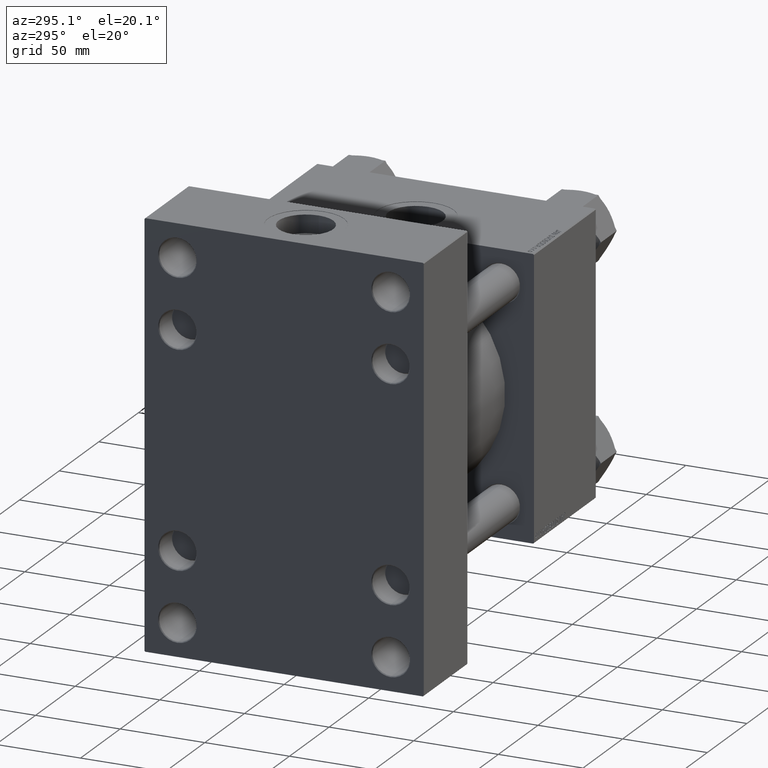
[diagram: clean part render]
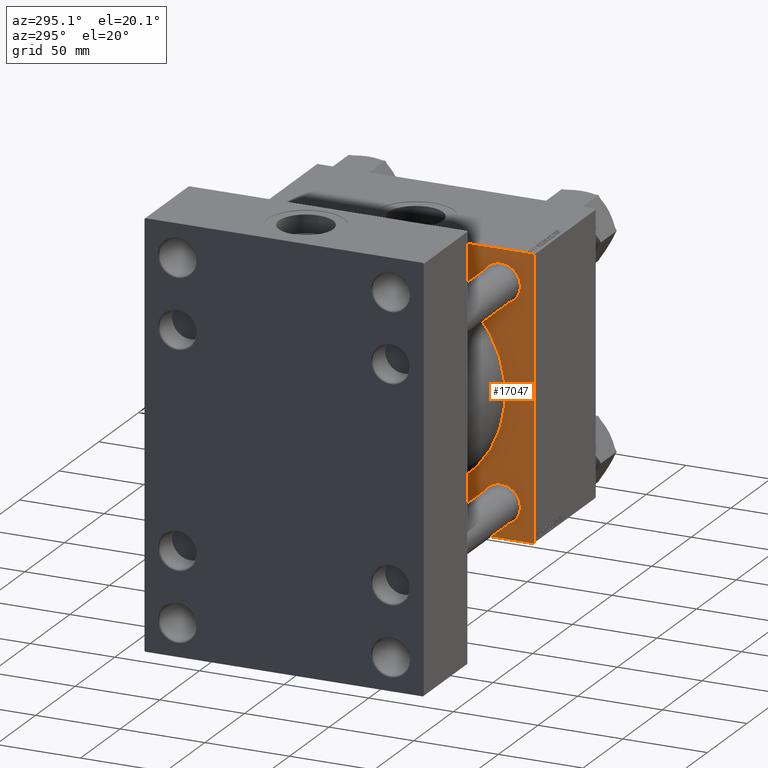
[diagram: same view with one face highlighted and labeled with its STEP entity id]
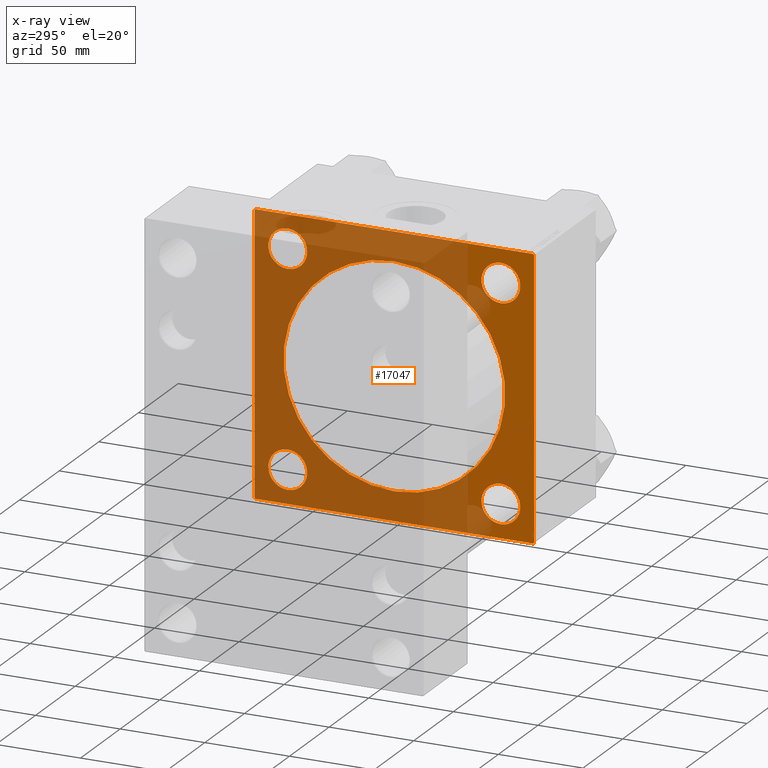
[diagram: x-ray of the same camera — body ghosted, the highlighted face saturated]
A machine part, auxiliary view. The second image highlights one B-rep face of the part: STEP entity #17047.
The next image is the same camera in x-ray: the body ghosted, the highlighted face saturated — about 69% of this face is hidden behind the body in this view.
In plain terms, the highlighted planar face has unit normal (-1, 0, 0).
Its self-contained STEP definition (entity closure, byte-faithful):
#990 = DIRECTION ( 'NONE',  ( 0.000000000000000000, 0.000000000000000000, 1.000000000000000000 ) ) ;
#1236 = DIRECTION ( 'NONE',  ( 1.000000000000000000, 0.000000000000000000, -0.000000000000000000 ) ) ;
#1289 = CARTESIAN_POINT ( 'NONE',  ( 139.0000000000000000, 81.99999999999995737, 82.50000000000000000 ) ) ;
#1339 = VERTEX_POINT ( 'NONE', #26054 ) ;
#1483 = VECTOR ( 'NONE', #8325, 1000.000000000000000 ) ;
#1748 = CARTESIAN_POINT ( 'NONE',  ( 139.0000000000000000, 62.95000000000000284, 62.95000000000000284 ) ) ;
#1897 = DIRECTION ( 'NONE',  ( 1.000000000000000000, 0.000000000000000000, -0.000000000000000000 ) ) ;
#2001 = AXIS2_PLACEMENT_3D ( 'NONE', #39831, #9691, #40080 ) ;
#2920 = EDGE_CURVE ( 'NONE', #30834, #1339, #31996, .T. ) ;
#2978 = VERTEX_POINT ( 'NONE', #45567 ) ;
#3236 = ORIENTED_EDGE ( 'NONE', *, *, #12616, .T. ) ;
#3453 = AXIS2_PLACEMENT_3D ( 'NONE', #48136, #1897, #9823 ) ;
#3614 = DIRECTION ( 'NONE',  ( 1.000000000000000000, 0.000000000000000000, 0.000000000000000000 ) ) ;
#3701 = EDGE_CURVE ( 'NONE', #39361, #28955, #36900, .T. ) ;
#3842 = ORIENTED_EDGE ( 'NONE', *, *, #24924, .T. ) ;
#4014 = FACE_BOUND ( 'NONE', #42192, .T. ) ;
#4273 = VERTEX_POINT ( 'NONE', #12832 ) ;
#4709 = DIRECTION ( 'NONE',  ( 0.000000000000000000, 0.7071067811865474617, -0.7071067811865474617 ) ) ;
#4824 = DIRECTION ( 'NONE',  ( 1.000000000000000000, 0.000000000000000000, -0.000000000000000000 ) ) ;
#5314 = CIRCLE ( 'NONE', #42841, 11.49999999999995381 ) ;
#6505 = VERTEX_POINT ( 'NONE', #20528 ) ;
#6507 = VERTEX_POINT ( 'NONE', #16719 ) ;
#6516 = EDGE_CURVE ( 'NONE', #2978, #6507, #12419, .T. ) ;
#6821 = CARTESIAN_POINT ( 'NONE',  ( 139.0000000000000000, 62.95000000000000284, 74.45000000000004547 ) ) ;
#7061 = EDGE_LOOP ( 'NONE', ( #30049, #43687 ) ) ;
#7582 = CARTESIAN_POINT ( 'NONE',  ( 139.0000000000000000, -82.50000000000000000, -82.00000000000002842 ) ) ;
#7766 = CIRCLE ( 'NONE', #50167, 65.50000000000001421 ) ;
#8199 = EDGE_CURVE ( 'NONE', #12777, #40901, #44883, .T. ) ;
#8232 = VERTEX_POINT ( 'NONE', #6821 ) ;
#8288 = CARTESIAN_POINT ( 'NONE',  ( 139.0000000000000000, -62.94999999999998153, -62.95000000000001705 ) ) ;
#8325 = DIRECTION ( 'NONE',  ( 0.000000000000000000, -1.000000000000000000, 0.000000000000000000 ) ) ;
#9592 = AXIS2_PLACEMENT_3D ( 'NONE', #32687, #4824, #990 ) ;
#9691 = DIRECTION ( 'NONE',  ( 1.000000000000000000, 0.000000000000000000, -0.000000000000000000 ) ) ;
#9823 = DIRECTION ( 'NONE',  ( 0.000000000000000000, 0.000000000000000000, 1.000000000000000000 ) ) ;
#9970 = DIRECTION ( 'NONE',  ( 0.000000000000000000, -1.000000000000000000, -1.682156097916904081E-16 ) ) ;
#10233 = CARTESIAN_POINT ( 'NONE',  ( 139.0000000000000000, -62.94999999999998153, 62.95000000000001705 ) ) ;
#10748 = VERTEX_POINT ( 'NONE', #29961 ) ;
#10922 = EDGE_CURVE ( 'NONE', #47295, #26420, #36042, .T. ) ;
#11345 = CARTESIAN_POINT ( 'NONE',  ( 139.0000000000000000, -81.99999999999995737, 82.49999999999997158 ) ) ;
#11777 = CARTESIAN_POINT ( 'NONE',  ( 139.0000000000000000, -2.602085213965210642E-15, 0.000000000000000000 ) ) ;
#11984 = EDGE_CURVE ( 'NONE', #8232, #34017, #43591, .T. ) ;
#12014 = CIRCLE ( 'NONE', #9592, 11.50000000000003730 ) ;
#12185 = FACE_BOUND ( 'NONE', #7061, .T. ) ;
#12295 = EDGE_CURVE ( 'NONE', #48930, #10748, #7766, .T. ) ;
#12392 = EDGE_LOOP ( 'NONE', ( #27207, #24442 ) ) ;
#12419 = CIRCLE ( 'NONE', #3453, 11.50000000000003730 ) ;
#12488 = VECTOR ( 'NONE', #25714, 999.9999999999998863 ) ;
#12616 = EDGE_CURVE ( 'NONE', #36217, #4273, #5314, .T. ) ;
#12777 = VERTEX_POINT ( 'NONE', #39443 ) ;
#12832 = CARTESIAN_POINT ( 'NONE',  ( 139.0000000000000000, -62.94999999999998153, 74.44999999999997442 ) ) ;
#13195 = CARTESIAN_POINT ( 'NONE',  ( 139.0000000000000000, -62.94999999999998153, 62.95000000000001705 ) ) ;
#13229 = CARTESIAN_POINT ( 'NONE',  ( 139.0000000000000000, 82.25000000000001421, -82.25000000000001421 ) ) ;
#13873 = CARTESIAN_POINT ( 'NONE',  ( 139.0000000000000000, 62.95000000000000284, -62.95000000000000284 ) ) ;
#14119 = DIRECTION ( 'NONE',  ( 1.000000000000000000, 0.000000000000000000, -0.000000000000000000 ) ) ;
#14513 = AXIS2_PLACEMENT_3D ( 'NONE', #11777, #3614, #39109 ) ;
#14975 = CARTESIAN_POINT ( 'NONE',  ( 139.0000000000000000, 62.95000000000000284, 51.44999999999996732 ) ) ;
#15259 = ORIENTED_EDGE ( 'NONE', *, *, #36756, .T. ) ;
#15473 = CARTESIAN_POINT ( 'NONE',  ( 139.0000000000000000, 82.50000000000001421, 81.99999999999994316 ) ) ;
#16719 = CARTESIAN_POINT ( 'NONE',  ( 139.0000000000000000, 62.95000000000000284, -51.44999999999996732 ) ) ;
#16867 = AXIS2_PLACEMENT_3D ( 'NONE', #13873, #14119, #29703 ) ;
#16943 = DIRECTION ( 'NONE',  ( 0.000000000000000000, 0.000000000000000000, 1.000000000000000000 ) ) ;
#16976 = AXIS2_PLACEMENT_3D ( 'NONE', #1748, #1236, #32144 ) ;
#17047 = ADVANCED_FACE ( 'NONE', ( #47174, #12185, #4014, #42860, #34942, #19584 ), #50522, .T. ) ;
#17678 = CIRCLE ( 'NONE', #16867, 11.50000000000003730 ) ;
#17882 = LINE ( 'NONE', #40886, #21728 ) ;
#18914 = ORIENTED_EDGE ( 'NONE', *, *, #6516, .T. ) ;
#18949 = AXIS2_PLACEMENT_3D ( 'NONE', #8288, #43538, #40481 ) ;
#19584 = FACE_OUTER_BOUND ( 'NONE', #24411, .T. ) ;
#20042 = CARTESIAN_POINT ( 'NONE',  ( 139.0000000000000000, 82.00000000000001421, -82.50000000000002842 ) ) ;
#20055 = EDGE_CURVE ( 'NONE', #6507, #2978, #17678, .T. ) ;
#20234 = CIRCLE ( 'NONE', #48824, 11.49999999999995381 ) ;
#20368 = ORIENTED_EDGE ( 'NONE', *, *, #30387, .F. ) ;
#20528 = CARTESIAN_POINT ( 'NONE',  ( 139.0000000000000000, 82.50000000000001421, -82.00000000000002842 ) ) ;
#20719 = VECTOR ( 'NONE', #28108, 999.9999999999998863 ) ;
#21728 = VECTOR ( 'NONE', #9970, 1000.000000000000000 ) ;
#22440 = CARTESIAN_POINT ( 'NONE',  ( 139.0000000000000000, -2.602085213965210642E-15, 0.000000000000000000 ) ) ;
#23059 = ORIENTED_EDGE ( 'NONE', *, *, #8199, .T. ) ;
#23456 = CIRCLE ( 'NONE', #14513, 65.50000000000001421 ) ;
#23502 = ORIENTED_EDGE ( 'NONE', *, *, #23658, .T. ) ;
#23658 = EDGE_CURVE ( 'NONE', #26214, #12777, #36678, .T. ) ;
#24124 = CARTESIAN_POINT ( 'NONE',  ( 139.0000000000000000, 82.24999999999997158, 82.24999999999997158 ) ) ;
#24411 = EDGE_LOOP ( 'NONE', ( #23502, #23059, #20368, #48076, #39082, #33888, #3842, #27683 ) ) ;
#24442 = ORIENTED_EDGE ( 'NONE', *, *, #41229, .T. ) ;
#24924 = EDGE_CURVE ( 'NONE', #28955, #6505, #30704, .T. ) ;
#25329 = ORIENTED_EDGE ( 'NONE', *, *, #20055, .T. ) ;
#25714 = DIRECTION ( 'NONE',  ( 0.000000000000000000, -0.7071067811865574537, 0.7071067811865376918 ) ) ;
#25846 = AXIS2_PLACEMENT_3D ( 'NONE', #34442, #27749, #50019 ) ;
#26054 = CARTESIAN_POINT ( 'NONE',  ( 139.0000000000000000, -62.94999999999998153, -51.44999999999998153 ) ) ;
#26214 = VERTEX_POINT ( 'NONE', #20042 ) ;
#26420 = VERTEX_POINT ( 'NONE', #11345 ) ;
#26463 = VECTOR ( 'NONE', #32969, 1000.000000000000000 ) ;
#27150 = VECTOR ( 'NONE', #4709, 1000.000000000000114 ) ;
#27207 = ORIENTED_EDGE ( 'NONE', *, *, #12295, .T. ) ;
#27683 = ORIENTED_EDGE ( 'NONE', *, *, #30692, .T. ) ;
#27749 = DIRECTION ( 'NONE',  ( -1.000000000000000000, -0.000000000000000000, 0.000000000000000000 ) ) ;
#27987 = EDGE_LOOP ( 'NONE', ( #48031, #3236 ) ) ;
#28084 = VECTOR ( 'NONE', #44398, 1000.000000000000114 ) ;
#28108 = DIRECTION ( 'NONE',  ( -0.000000000000000000, 0.7071067811865574537, 0.7071067811865376918 ) ) ;
#28479 = EDGE_LOOP ( 'NONE', ( #15259, #40283 ) ) ;
#28485 = CARTESIAN_POINT ( 'NONE',  ( 139.0000000000000000, -62.94999999999998153, -74.45000000000005969 ) ) ;
#28769 = DIRECTION ( 'NONE',  ( 0.000000000000000000, 0.000000000000000000, 1.000000000000000000 ) ) ;
#28886 = CARTESIAN_POINT ( 'NONE',  ( 139.0000000000000000, -2.602085213965210642E-15, 65.50000000000001421 ) ) ;
#28955 = VERTEX_POINT ( 'NONE', #15473 ) ;
#29598 = DIRECTION ( 'NONE',  ( 1.000000000000000000, 0.000000000000000000, 0.000000000000000000 ) ) ;
#29703 = DIRECTION ( 'NONE',  ( 0.000000000000000000, 0.000000000000000000, 1.000000000000000000 ) ) ;
#29961 = CARTESIAN_POINT ( 'NONE',  ( 139.0000000000000000, 5.419351320449953395E-15, -65.50000000000001421 ) ) ;
#30049 = ORIENTED_EDGE ( 'NONE', *, *, #11984, .T. ) ;
#30137 = CARTESIAN_POINT ( 'NONE',  ( 139.0000000000000000, -82.49999999999997158, 82.49999999999997158 ) ) ;
#30387 = EDGE_CURVE ( 'NONE', #47295, #40901, #45220, .T. ) ;
#30692 = EDGE_CURVE ( 'NONE', #6505, #26214, #48998, .T. ) ;
#30704 = LINE ( 'NONE', #34798, #39475 ) ;
#30834 = VERTEX_POINT ( 'NONE', #28485 ) ;
#31752 = DIRECTION ( 'NONE',  ( 1.000000000000000000, 0.000000000000000000, -0.000000000000000000 ) ) ;
#31996 = CIRCLE ( 'NONE', #18949, 11.50000000000003730 ) ;
#32074 = CARTESIAN_POINT ( 'NONE',  ( 139.0000000000000000, 82.50000000000001421, -82.50000000000002842 ) ) ;
#32144 = DIRECTION ( 'NONE',  ( 0.000000000000000000, 0.000000000000000000, 1.000000000000000000 ) ) ;
#32687 = CARTESIAN_POINT ( 'NONE',  ( 139.0000000000000000, -62.94999999999998153, -62.95000000000001705 ) ) ;
#32969 = DIRECTION ( 'NONE',  ( 0.000000000000000000, -1.682156097916903834E-16, -1.000000000000000000 ) ) ;
#33185 = DIRECTION ( 'NONE',  ( 0.000000000000000000, 0.000000000000000000, -1.000000000000000000 ) ) ;
#33888 = ORIENTED_EDGE ( 'NONE', *, *, #3701, .T. ) ;
#34017 = VERTEX_POINT ( 'NONE', #14975 ) ;
#34442 = CARTESIAN_POINT ( 'NONE',  ( 139.0000000000000000, 0.000000000000000000, 0.000000000000000000 ) ) ;
#34798 = CARTESIAN_POINT ( 'NONE',  ( 139.0000000000000000, 82.50000000000001421, 82.50000000000000000 ) ) ;
#34806 = EDGE_CURVE ( 'NONE', #39361, #26420, #17882, .T. ) ;
#34942 = FACE_BOUND ( 'NONE', #12392, .T. ) ;
#36042 = LINE ( 'NONE', #44731, #20719 ) ;
#36217 = VERTEX_POINT ( 'NONE', #43781 ) ;
#36678 = LINE ( 'NONE', #32074, #1483 ) ;
#36756 = EDGE_CURVE ( 'NONE', #1339, #30834, #12014, .T. ) ;
#36900 = LINE ( 'NONE', #24124, #27150 ) ;
#37212 = CARTESIAN_POINT ( 'NONE',  ( 139.0000000000000000, -82.24999999999886313, -82.25000000000115108 ) ) ;
#39082 = ORIENTED_EDGE ( 'NONE', *, *, #34806, .F. ) ;
#39109 = DIRECTION ( 'NONE',  ( 0.000000000000000000, 0.000000000000000000, -1.000000000000000000 ) ) ;
#39361 = VERTEX_POINT ( 'NONE', #1289 ) ;
#39443 = CARTESIAN_POINT ( 'NONE',  ( 139.0000000000000000, -81.99999999999998579, -82.50000000000002842 ) ) ;
#39475 = VECTOR ( 'NONE', #41977, 1000.000000000000000 ) ;
#39831 = CARTESIAN_POINT ( 'NONE',  ( 139.0000000000000000, 62.95000000000000284, 62.95000000000000284 ) ) ;
#40080 = DIRECTION ( 'NONE',  ( 0.000000000000000000, 0.000000000000000000, 1.000000000000000000 ) ) ;
#40283 = ORIENTED_EDGE ( 'NONE', *, *, #2920, .T. ) ;
#40296 = EDGE_CURVE ( 'NONE', #4273, #36217, #20234, .T. ) ;
#40481 = DIRECTION ( 'NONE',  ( 0.000000000000000000, 0.000000000000000000, 1.000000000000000000 ) ) ;
#40886 = CARTESIAN_POINT ( 'NONE',  ( 139.0000000000000000, 82.50000000000001421, 82.50000000000000000 ) ) ;
#40901 = VERTEX_POINT ( 'NONE', #7582 ) ;
#41229 = EDGE_CURVE ( 'NONE', #10748, #48930, #23456, .T. ) ;
#41977 = DIRECTION ( 'NONE',  ( 0.000000000000000000, 0.000000000000000000, -1.000000000000000000 ) ) ;
#42192 = EDGE_LOOP ( 'NONE', ( #25329, #18914 ) ) ;
#42697 = EDGE_CURVE ( 'NONE', #34017, #8232, #48789, .T. ) ;
#42841 = AXIS2_PLACEMENT_3D ( 'NONE', #13195, #44364, #28769 ) ;
#42860 = FACE_BOUND ( 'NONE', #28479, .T. ) ;
#43538 = DIRECTION ( 'NONE',  ( 1.000000000000000000, 0.000000000000000000, -0.000000000000000000 ) ) ;
#43591 = CIRCLE ( 'NONE', #2001, 11.50000000000003730 ) ;
#43687 = ORIENTED_EDGE ( 'NONE', *, *, #42697, .T. ) ;
#43781 = CARTESIAN_POINT ( 'NONE',  ( 139.0000000000000000, -62.94999999999998153, 51.45000000000006679 ) ) ;
#44364 = DIRECTION ( 'NONE',  ( 1.000000000000000000, 0.000000000000000000, -0.000000000000000000 ) ) ;
#44398 = DIRECTION ( 'NONE',  ( -0.000000000000000000, -0.7071067811865474617, -0.7071067811865474617 ) ) ;
#44731 = CARTESIAN_POINT ( 'NONE',  ( 139.0000000000000000, -82.24999999999882050, 82.25000000000110845 ) ) ;
#44883 = LINE ( 'NONE', #37212, #12488 ) ;
#45220 = LINE ( 'NONE', #30137, #26463 ) ;
#45567 = CARTESIAN_POINT ( 'NONE',  ( 139.0000000000000000, 62.95000000000000284, -74.45000000000004547 ) ) ;
#47174 = FACE_BOUND ( 'NONE', #27987, .T. ) ;
#47295 = VERTEX_POINT ( 'NONE', #48157 ) ;
#48031 = ORIENTED_EDGE ( 'NONE', *, *, #40296, .T. ) ;
#48076 = ORIENTED_EDGE ( 'NONE', *, *, #10922, .T. ) ;
#48136 = CARTESIAN_POINT ( 'NONE',  ( 139.0000000000000000, 62.95000000000000284, -62.95000000000000284 ) ) ;
#48157 = CARTESIAN_POINT ( 'NONE',  ( 139.0000000000000000, -82.49999999999997158, 81.99999999999997158 ) ) ;
#48789 = CIRCLE ( 'NONE', #16976, 11.50000000000003730 ) ;
#48824 = AXIS2_PLACEMENT_3D ( 'NONE', #10233, #31752, #16943 ) ;
#48930 = VERTEX_POINT ( 'NONE', #28886 ) ;
#48998 = LINE ( 'NONE', #13229, #28084 ) ;
#50019 = DIRECTION ( 'NONE',  ( 0.000000000000000000, 0.000000000000000000, 1.000000000000000000 ) ) ;
#50167 = AXIS2_PLACEMENT_3D ( 'NONE', #22440, #29598, #33185 ) ;
#50522 = PLANE ( 'NONE',  #25846 ) ;